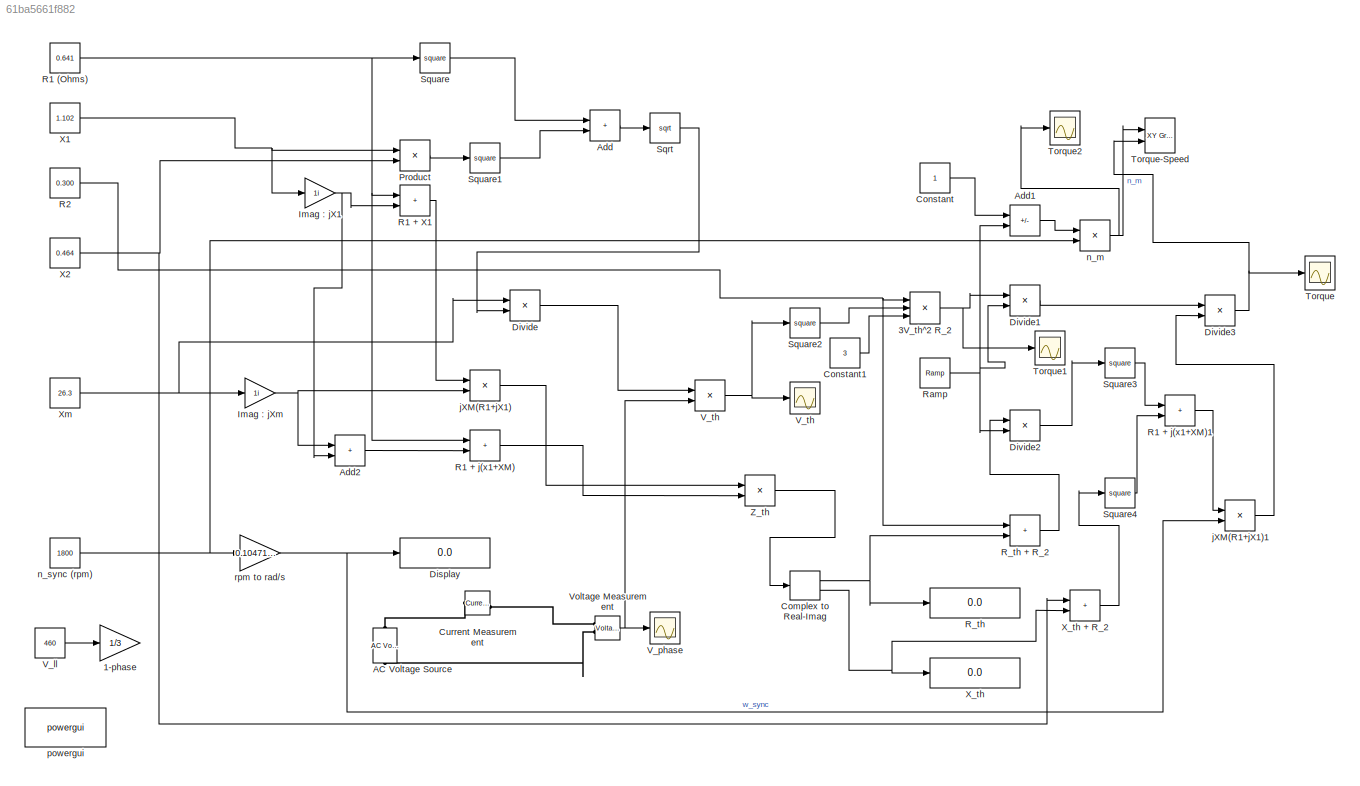
MODEL slx_61ba5661f882
KIND model
CONFIG AbsTol = auto
CONFIG EnableMultiTasking = off
CONFIG FixedStep = auto
CONFIG MaxStep = auto
CONFIG MinStep = auto
CONFIG RelTol = 1e-3
CONFIG SampleTimeConstraint = Unconstrained
CONFIG Solver = VariableStepAuto
CONFIG SolverName = VariableStepAuto
CONFIG StartTime = 0.0
CONFIG StopTime = 1
BLOCK [Gain] 1-phase
  Gain = 1/3
BLOCK [Product] 3V_th^2 R_2
  Inputs = 3
  Ports = [3, 1]
BLOCK [Reference] AC Voltage Source  REF=powerlib/Electrical
Sources/AC Voltage Source
  NameLocation = right
  Ports = [0, 0, 0, 0, 0, 1, 1]
  SourceBlock = powerlib/Electrical\nSources/AC Voltage Source
  SourceProductBaseCode = PS
  SourceType = AC Voltage Source
BLOCK [Sum] Add
  IconShape = rectangular
  Ports = [2, 1]
BLOCK [Sum] Add1
  IconShape = rectangular
  Inputs = +-
  Ports = [2, 1]
BLOCK [Sum] Add2
  IconShape = rectangular
  Ports = [2, 1]
BLOCK [ComplexToRealImag] Complex to Real-Imag
  Ports = [1, 2]
BLOCK [Constant] Constant
BLOCK [Constant] Constant1
  Value = 3
BLOCK [Reference] Current Measurement  REF=powerlib/Measurements/Current Measurement
  Ports = [0, 1, 0, 0, 0, 1, 1]
  SourceBlock = powerlib/Measurements/Current Measurement
  SourceProductBaseCode = PS
  SourceType = Current Measurement
  UserDataPersistent = on
BLOCK [Display] Display
  Decimation = 1
  Ports = [1]
BLOCK [Product] Divide
  Inputs = */
  Ports = [2, 1]
BLOCK [Product] Divide1
  Inputs = */
  Ports = [2, 1]
BLOCK [Product] Divide2
  Inputs = */
  Ports = [2, 1]
BLOCK [Product] Divide3
  Inputs = */
  Ports = [2, 1]
BLOCK [Gain] Imag : jX1
  Gain = 1i
BLOCK [Gain] Imag : jXm
  Gain = 1i
BLOCK [Product] Product
  Ports = [2, 1]
BLOCK [Constant] R1 (Ohms)
  Value = 0.641
BLOCK [Sum] R1 + X1
  IconShape = rectangular
  Ports = [2, 1]
BLOCK [Sum] R1 + j(x1+XM)
  IconShape = rectangular
  Ports = [2, 1]
BLOCK [Sum] R1 + j(x1+XM)1
  IconShape = rectangular
  Ports = [2, 1]
BLOCK [Constant] R2 
  Value = 0.300
BLOCK [Display] R_th
  Decimation = 1
  Ports = [1]
BLOCK [Sum] R_th + R_2
  IconShape = rectangular
  Ports = [2, 1]
BLOCK [Reference] Ramp  REF=simulink/Sources/Ramp
  Ports = [0, 1]
  SourceBlock = simulink/Sources/Ramp
  SourceProductBaseCode = SL
  SourceType = Ramp
BLOCK [Sqrt] Sqrt
BLOCK [Math] Square
  Operator = square
  Ports = [1, 1]
BLOCK [Math] Square1
  Operator = square
  Ports = [1, 1]
BLOCK [Math] Square2
  Operator = square
  Ports = [1, 1]
BLOCK [Math] Square3
  Operator = square
  Ports = [1, 1]
BLOCK [Math] Square4
  Operator = square
  Ports = [1, 1]
BLOCK [Scope] Torque
  Floating = off
  NumInputPorts = 1
  Ports = [1]
  ScopeSpecificationString = Simulink.scopes.TimeScopeBlockCfg('CurrentConfiguration', extmgr.ConfigurationSet(extmgr.Configuration('Core','General UI',true),extmgr.Configuration('Core','Source UI',true),extmgr.Configuration('Sources','WiredSimulink',true,'DataLoggingVariableName','ScopeData1'),extmgr.Configuration('Visuals','Time Domain',true,'SerializedDisplays',{struct('MinYLimReal','-5282.08003','MaxYLimReal','47520.7203'...<+1468ch>
BLOCK [Reference] Torque-Speed  REF=simulink/Sinks/XY Graph
  Ports = [2]
  SourceBlock = simulink/Sinks/XY Graph
  SourceProductBaseCode = SL
  SourceType = XY scope.
BLOCK [Scope] Torque1
  Floating = off
  NumInputPorts = 1
  Ports = [1]
  ScopeSpecificationString = Simulink.scopes.TimeScopeBlockCfg('CurrentConfiguration', extmgr.ConfigurationSet(extmgr.Configuration('Core','General UI',true),extmgr.Configuration('Core','Source UI',true),extmgr.Configuration('Sources','WiredSimulink',true,'DataLoggingVariableName','ScopeData3'),extmgr.Configuration('Visuals','Time Domain',true,'SerializedDisplays',{struct('MinYLimReal','-5282.08003','MaxYLimReal','47520.7203'...<+1468ch>
BLOCK [Scope] Torque2
  Floating = off
  NumInputPorts = 1
  Ports = [1]
  ScopeSpecificationString = Simulink.scopes.TimeScopeBlockCfg('CurrentConfiguration', extmgr.ConfigurationSet(extmgr.Configuration('Core','General UI',true),extmgr.Configuration('Core','Source UI',true),extmgr.Configuration('Sources','WiredSimulink',true,'DataLoggingVariableName','ScopeData4'),extmgr.Configuration('Visuals','Time Domain',true,'SerializedDisplays',{struct('MinYLimReal','-5282.08003','MaxYLimReal','47520.7203'...<+1468ch>
BLOCK [Constant] V_ll
  Value = 460
BLOCK [Scope] V_phase
  Floating = off
  NumInputPorts = 1
  Ports = [1]
  ScopeSpecificationString = Simulink.scopes.TimeScopeBlockCfg('CurrentConfiguration', extmgr.ConfigurationSet(extmgr.Configuration('Core','General UI',true),extmgr.Configuration('Core','Source UI',true),extmgr.Configuration('Sources','WiredSimulink',true,'DataLoggingVariableName','ScopeData1'),extmgr.Configuration('Visuals','Time Domain',true,'SerializedDisplays',{struct('MinYLimReal','-191.6625','MaxYLimReal','191.6625','YL...<+1470ch>
BLOCK [Scope] V_th
  Floating = off
  NumInputPorts = 1
  Ports = [1]
  ScopeSpecificationString = Simulink.scopes.TimeScopeBlockCfg('CurrentConfiguration', extmgr.ConfigurationSet(extmgr.Configuration('Core','General UI',true),extmgr.Configuration('Core','Source UI',true),extmgr.Configuration('Sources','WiredSimulink',true,'DataLoggingVariableName','ScopeData2'),extmgr.Configuration('Visuals','Time Domain',true,'SerializedDisplays',{struct('MinYLimReal','-18.2178','MaxYLimReal','163.96017','YL...<+1452ch>
BLOCK [Product] V_th 
  Ports = [2, 1]
BLOCK [Reference] Voltage Measurement  REF=powerlib/Measurements/Voltage Measurement
  Ports = [0, 1, 0, 0, 0, 2]
  SourceBlock = powerlib/Measurements/Voltage Measurement
  SourceProductBaseCode = PS
  SourceType = Voltage Measurement
  UserDataPersistent = on
BLOCK [Constant] X1 
  Value = 1.102
BLOCK [Constant] X2
  Value = 0.464
BLOCK [Display] X_th
  Decimation = 1
  Ports = [1]
BLOCK [Sum] X_th + R_2
  IconShape = rectangular
  Ports = [2, 1]
BLOCK [Constant] Xm 
  Value = 26.3
BLOCK [Product] Z_th
  Inputs = */
  Ports = [2, 1]
BLOCK [Product] jXM(R1+jX1)
  Ports = [2, 1]
BLOCK [Product] jXM(R1+jX1)1
  Ports = [2, 1]
BLOCK [Product] n_m
  Ports = [2, 1]
BLOCK [Constant] n_sync (rpm)
  Value = 1800
BLOCK [Reference] powergui  REF=powerlib/powergui
  Ports = []
  Priority = 1
  SourceBlock = powerlib/powergui
  SourceProductBaseCode = PS
  SourceType = PSB option menu block
BLOCK [Gain] rpm to rad//s
  Gain = 0.1047197
NET 3V_th^2 R_2:1 -> Divide1:1, Torque1:1
LINE Add1:1 -> n_m:1
LINE Add2:1 -> R1 + j(x1+XM):2
LINE Add:1 -> Sqrt:1
NET Complex to Real-Imag:1 -> R_th + R_2:2, R_th:1
NET Complex to Real-Imag:2 -> X_th + R_2:2, X_th:1
LINE Constant1:1 -> 3V_th^2 R_2:3
LINE Constant:1 -> Add1:1
LINE Divide1:1 -> Divide3:1
LINE Divide2:1 -> Square3:1
NET Divide3:1 -> Torque-Speed:2, Torque:1
LINE Divide:1 -> V_th :1
NET Imag : jX1:1 -> Add2:2, R1 + X1:2
NET Imag : jXm:1 -> Add2:1, jXM(R1+jX1):2
LINE Product:1 -> Square1:1
NET R1 (Ohms):1 -> R1 + X1:1, R1 + j(x1+XM):1, Square:1
LINE R1 + X1:1 -> jXM(R1+jX1):1
LINE R1 + j(x1+XM)1:1 -> jXM(R1+jX1)1:1
LINE R1 + j(x1+XM):1 -> Z_th:2
NET R2 :1 -> 3V_th^2 R_2:1, R_th + R_2:1
LINE R_th + R_2:1 -> Divide2:1
NET Ramp:1 -> Add1:2, Divide1:2, Divide2:2
LINE Sqrt:1 -> Divide:2
LINE Square1:1 -> Add:2
LINE Square2:1 -> 3V_th^2 R_2:2
LINE Square3:1 -> R1 + j(x1+XM)1:1
LINE Square4:1 -> R1 + j(x1+XM)1:2
LINE Square:1 -> Add:1
LINE V_ll:1 -> 1-phase:1
NET V_th :1 -> Square2:1, V_th:1
NET Voltage Measurement:1 -> V_phase:1, V_th :2
NET X1 :1 -> Imag : jX1:1, Product:1
NET X2:1 -> Product:2, X_th + R_2:1
LINE X_th + R_2:1 -> Square4:1
NET Xm :1 -> Divide:1, Imag : jXm:1
LINE Z_th:1 -> Complex to Real-Imag:1
LINE jXM(R1+jX1)1:1 -> Divide3:2
LINE jXM(R1+jX1):1 -> Z_th:1
NET n_m:1 -> Torque-Speed:1, Torque2:1
NET n_sync (rpm):1 -> n_m:2, rpm to rad//s:1
NET rpm to rad//s:1 -> Display:1, jXM(R1+jX1)1:2
PLINE AC Voltage Source:LConn1 -- Voltage Measurement:LConn2
PLINE AC Voltage Source:RConn1 -- Current Measurement:LConn1
PLINE Current Measurement:RConn1 -- Voltage Measurement:LConn1
note: NET lines group one-source signal fan-out (src -> all destinations, sorted); 1:1 wires keep LINE
